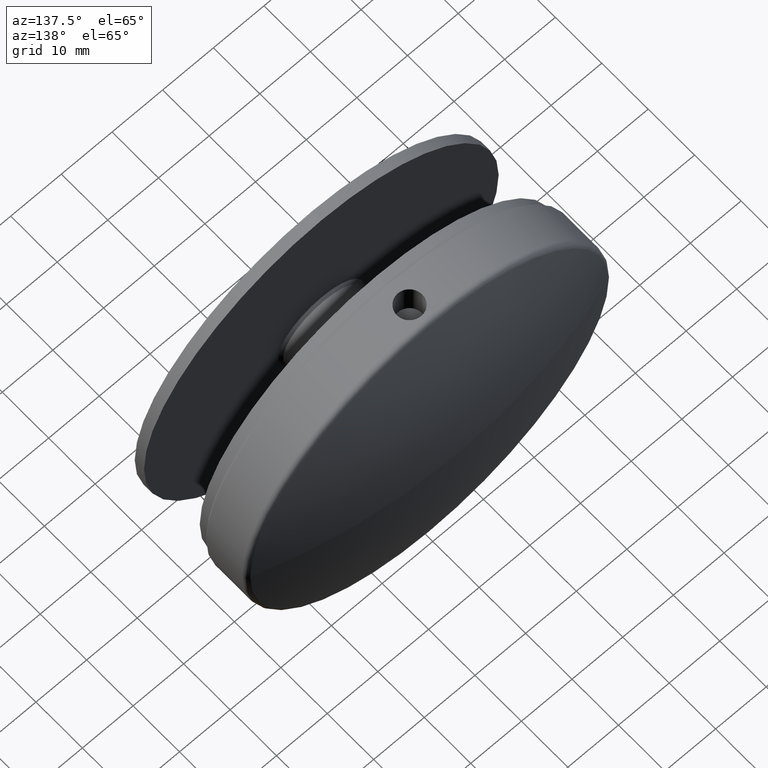
[diagram: clean part render]
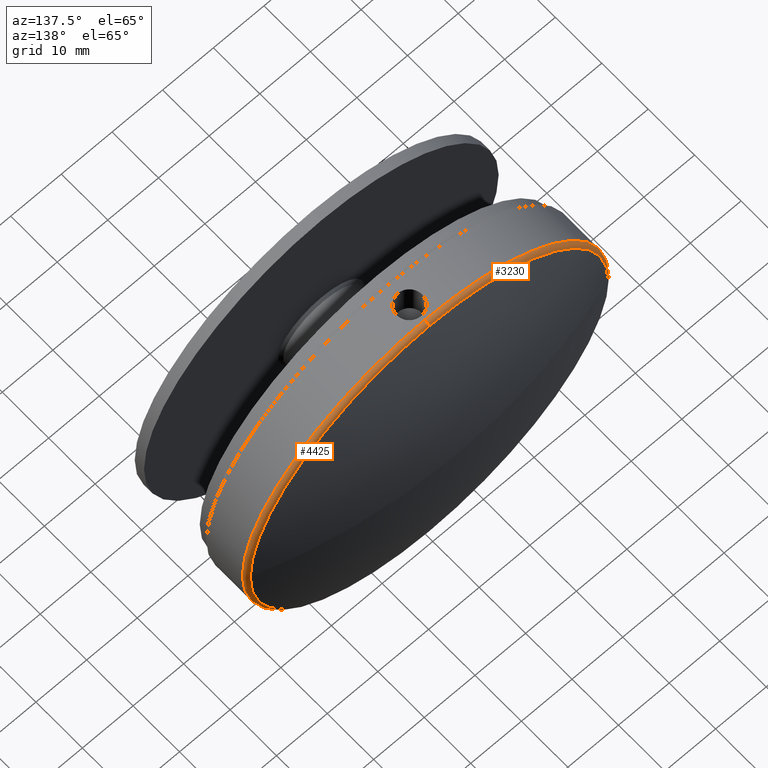
[diagram: same view with one multi-face feature highlighted, each face labeled with its STEP entity id]
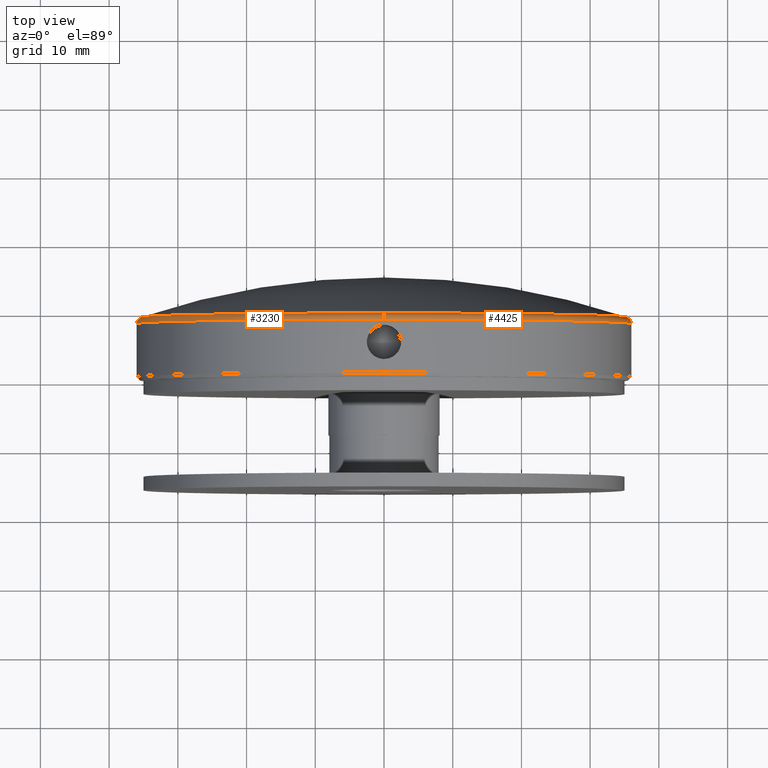
[diagram: same view with one multi-face feature highlighted, each face labeled with its STEP entity id]
A machine part, auxiliary view. The highlighted faces form ONE feature: a constant-radius fillet chain: 2 tangent blend faces with common blend radius 1 mm. The faces share edges in the B-rep.
A second angle (top view) of the same feature is appended — it is thin or edge-on in the first view.
Their STEP definitions:
[1] entity #4425 (Torus):
#69 = AXIS2_PLACEMENT_3D ( 'NONE', #2242, #10259, #13577 ) ;
#447 = ORIENTED_EDGE ( 'NONE', *, *, #8253, .T. ) ;
#453 = EDGE_LOOP ( 'NONE', ( #447, #2091, #7853, #11038, #4113 ) ) ;
#640 = DIRECTION ( 'NONE',  ( -0.000000000000000000, -1.000000000000000000, -0.000000000000000000 ) ) ;
#731 = CARTESIAN_POINT ( 'NONE',  ( 0.000000000000000000, 9.231297782826233700, -35.31818181818182723 ) ) ;
#783 = CARTESIAN_POINT ( 'NONE',  ( 0.000000000000000000, 9.231297782826233700, 0.000000000000000000 ) ) ;
#861 = CARTESIAN_POINT ( 'NONE',  ( 4.408728476930471644E-15, 8.283268073071045734, 36.00000000000000711 ) ) ;
#864 = FACE_OUTER_BOUND ( 'NONE', #453, .T. ) ;
#987 = VERTEX_POINT ( 'NONE', #861 ) ;
#1612 = AXIS2_PLACEMENT_3D ( 'NONE', #783, #640, #14592 ) ;
#1899 = CARTESIAN_POINT ( 'NONE',  ( 35.31818181818183433, 9.231297782826226594, 0.000000000000000000 ) ) ;
#2091 = ORIENTED_EDGE ( 'NONE', *, *, #5867, .T. ) ;
#2242 = CARTESIAN_POINT ( 'NONE',  ( 0.000000000000000000, 8.283268073071045734, 0.000000000000000000 ) ) ;
#2256 = VERTEX_POINT ( 'NONE', #7570 ) ;
#2802 = DIRECTION ( 'NONE',  ( 1.000000000000000000, 0.000000000000000000, -1.224646799147353207E-16 ) ) ;
#2956 = CIRCLE ( 'NONE', #10081, 1.000000000000000888 ) ;
#3198 = EDGE_CURVE ( 'NONE', #14256, #3861, #7359, .T. ) ;
#3861 = VERTEX_POINT ( 'NONE', #1899 ) ;
#4113 = ORIENTED_EDGE ( 'NONE', *, *, #3198, .T. ) ;
#4118 = DIRECTION ( 'NONE',  ( 0.000000000000000000, 0.000000000000000000, -1.000000000000000000 ) ) ;
#4263 = CIRCLE ( 'NONE', #6238, 1.000000000000000888 ) ;
#4425 = ADVANCED_FACE ( 'NONE', ( #864 ), #12352, .T. ) ;
#4875 = DIRECTION ( 'NONE',  ( 0.000000000000000000, 0.000000000000000000, -1.000000000000000000 ) ) ;
#5660 = AXIS2_PLACEMENT_3D ( 'NONE', #14362, #12097, #4118 ) ;
#5867 = EDGE_CURVE ( 'NONE', #6087, #987, #4263, .T. ) ;
#6087 = VERTEX_POINT ( 'NONE', #13797 ) ;
#6238 = AXIS2_PLACEMENT_3D ( 'NONE', #9766, #2802, #10835 ) ;
#6588 = DIRECTION ( 'NONE',  ( 0.000000000000000000, 0.000000000000000000, 1.000000000000000000 ) ) ;
#7359 = CIRCLE ( 'NONE', #5660, 35.31818181818182723 ) ;
#7570 = CARTESIAN_POINT ( 'NONE',  ( 0.000000000000000000, 8.283268073071045734, -36.00000000000000711 ) ) ;
#7853 = ORIENTED_EDGE ( 'NONE', *, *, #14023, .F. ) ;
#8253 = EDGE_CURVE ( 'NONE', #3861, #6087, #11966, .T. ) ;
#8980 = DIRECTION ( 'NONE',  ( -1.000000000000000000, 0.000000000000000000, 0.000000000000000000 ) ) ;
#9568 = EDGE_CURVE ( 'NONE', #14256, #2256, #2956, .T. ) ;
#9766 = CARTESIAN_POINT ( 'NONE',  ( 4.286263797015736496E-15, 8.283268073071045734, 35.00000000000000000 ) ) ;
#10081 = AXIS2_PLACEMENT_3D ( 'NONE', #14662, #8980, #6588 ) ;
#10259 = DIRECTION ( 'NONE',  ( -0.000000000000000000, -1.000000000000000000, -0.000000000000000000 ) ) ;
#10682 = DIRECTION ( 'NONE',  ( -0.000000000000000000, -1.000000000000000000, -0.000000000000000000 ) ) ;
#10835 = DIRECTION ( 'NONE',  ( -1.224646799147357151E-16, 0.000000000000000000, -1.000000000000000000 ) ) ;
#11038 = ORIENTED_EDGE ( 'NONE', *, *, #9568, .F. ) ;
#11966 = CIRCLE ( 'NONE', #1612, 35.31818181818182723 ) ;
#12097 = DIRECTION ( 'NONE',  ( -0.000000000000000000, -1.000000000000000000, -0.000000000000000000 ) ) ;
#12352 = TOROIDAL_SURFACE ( 'NONE', #69, 35.00000000000000000, 1.000000000000003553 ) ;
#12502 = AXIS2_PLACEMENT_3D ( 'NONE', #14095, #10682, #4875 ) ;
#13577 = DIRECTION ( 'NONE',  ( 0.000000000000000000, 0.000000000000000000, -1.000000000000000000 ) ) ;
#13797 = CARTESIAN_POINT ( 'NONE',  ( 4.366979154232267126E-15, 9.231297782826233700, 35.31818181818182723 ) ) ;
#14023 = EDGE_CURVE ( 'NONE', #2256, #987, #14386, .T. ) ;
#14095 = CARTESIAN_POINT ( 'NONE',  ( 0.000000000000000000, 8.283268073071045734, 0.000000000000000000 ) ) ;
#14256 = VERTEX_POINT ( 'NONE', #731 ) ;
#14362 = CARTESIAN_POINT ( 'NONE',  ( 0.000000000000000000, 9.231297782826233700, 0.000000000000000000 ) ) ;
#14386 = CIRCLE ( 'NONE', #12502, 36.00000000000000711 ) ;
#14592 = DIRECTION ( 'NONE',  ( 0.000000000000000000, 0.000000000000000000, -1.000000000000000000 ) ) ;
#14662 = CARTESIAN_POINT ( 'NONE',  ( 0.000000000000000000, 8.283268073071045734, -35.00000000000000000 ) ) ;
[2] entity #3230 (Torus):
#101 = AXIS2_PLACEMENT_3D ( 'NONE', #13524, #14801, #10218 ) ;
#731 = CARTESIAN_POINT ( 'NONE',  ( 0.000000000000000000, 9.231297782826233700, -35.31818181818182723 ) ) ;
#861 = CARTESIAN_POINT ( 'NONE',  ( 4.408728476930471644E-15, 8.283268073071045734, 36.00000000000000711 ) ) ;
#987 = VERTEX_POINT ( 'NONE', #861 ) ;
#1710 = EDGE_LOOP ( 'NONE', ( #5713, #8324, #8772, #2048, #14792 ) ) ;
#1852 = DIRECTION ( 'NONE',  ( 0.000000000000000000, 0.000000000000000000, -1.000000000000000000 ) ) ;
#2048 = ORIENTED_EDGE ( 'NONE', *, *, #9568, .T. ) ;
#2256 = VERTEX_POINT ( 'NONE', #7570 ) ;
#2802 = DIRECTION ( 'NONE',  ( 1.000000000000000000, 0.000000000000000000, -1.224646799147353207E-16 ) ) ;
#2956 = CIRCLE ( 'NONE', #10081, 1.000000000000000888 ) ;
#3008 = DIRECTION ( 'NONE',  ( 0.000000000000000000, 0.000000000000000000, -1.000000000000000000 ) ) ;
#3203 = EDGE_CURVE ( 'NONE', #3824, #14256, #7185, .T. ) ;
#3230 = ADVANCED_FACE ( 'NONE', ( #13813 ), #4292, .T. ) ;
#3824 = VERTEX_POINT ( 'NONE', #14393 ) ;
#4263 = CIRCLE ( 'NONE', #6238, 1.000000000000000888 ) ;
#4292 = TOROIDAL_SURFACE ( 'NONE', #11002, 35.00000000000000000, 1.000000000000003553 ) ;
#4550 = EDGE_CURVE ( 'NONE', #987, #2256, #13238, .T. ) ;
#5247 = CARTESIAN_POINT ( 'NONE',  ( 0.000000000000000000, 9.231297782826233700, 0.000000000000000000 ) ) ;
#5300 = DIRECTION ( 'NONE',  ( -0.000000000000000000, -1.000000000000000000, -0.000000000000000000 ) ) ;
#5713 = ORIENTED_EDGE ( 'NONE', *, *, #5867, .F. ) ;
#5867 = EDGE_CURVE ( 'NONE', #6087, #987, #4263, .T. ) ;
#6087 = VERTEX_POINT ( 'NONE', #13797 ) ;
#6238 = AXIS2_PLACEMENT_3D ( 'NONE', #9766, #2802, #10835 ) ;
#6588 = DIRECTION ( 'NONE',  ( 0.000000000000000000, 0.000000000000000000, 1.000000000000000000 ) ) ;
#7015 = DIRECTION ( 'NONE',  ( -0.000000000000000000, -1.000000000000000000, -0.000000000000000000 ) ) ;
#7185 = CIRCLE ( 'NONE', #12253, 35.31818181818182723 ) ;
#7546 = DIRECTION ( 'NONE',  ( -0.000000000000000000, -1.000000000000000000, -0.000000000000000000 ) ) ;
#7570 = CARTESIAN_POINT ( 'NONE',  ( 0.000000000000000000, 8.283268073071045734, -36.00000000000000711 ) ) ;
#7654 = CIRCLE ( 'NONE', #101, 35.31818181818182723 ) ;
#8166 = DIRECTION ( 'NONE',  ( 0.000000000000000000, 0.000000000000000000, -1.000000000000000000 ) ) ;
#8324 = ORIENTED_EDGE ( 'NONE', *, *, #8423, .T. ) ;
#8423 = EDGE_CURVE ( 'NONE', #6087, #3824, #7654, .T. ) ;
#8772 = ORIENTED_EDGE ( 'NONE', *, *, #3203, .T. ) ;
#8980 = DIRECTION ( 'NONE',  ( -1.000000000000000000, 0.000000000000000000, 0.000000000000000000 ) ) ;
#9568 = EDGE_CURVE ( 'NONE', #14256, #2256, #2956, .T. ) ;
#9766 = CARTESIAN_POINT ( 'NONE',  ( 4.286263797015736496E-15, 8.283268073071045734, 35.00000000000000000 ) ) ;
#10081 = AXIS2_PLACEMENT_3D ( 'NONE', #14662, #8980, #6588 ) ;
#10218 = DIRECTION ( 'NONE',  ( 0.000000000000000000, 0.000000000000000000, -1.000000000000000000 ) ) ;
#10835 = DIRECTION ( 'NONE',  ( -1.224646799147357151E-16, 0.000000000000000000, -1.000000000000000000 ) ) ;
#11002 = AXIS2_PLACEMENT_3D ( 'NONE', #11040, #5300, #3008 ) ;
#11040 = CARTESIAN_POINT ( 'NONE',  ( 0.000000000000000000, 8.283268073071045734, 0.000000000000000000 ) ) ;
#11887 = AXIS2_PLACEMENT_3D ( 'NONE', #13870, #7015, #8166 ) ;
#12253 = AXIS2_PLACEMENT_3D ( 'NONE', #5247, #7546, #1852 ) ;
#13238 = CIRCLE ( 'NONE', #11887, 36.00000000000000711 ) ;
#13524 = CARTESIAN_POINT ( 'NONE',  ( 0.000000000000000000, 9.231297782826233700, 0.000000000000000000 ) ) ;
#13797 = CARTESIAN_POINT ( 'NONE',  ( 4.366979154232267126E-15, 9.231297782826233700, 35.31818181818182723 ) ) ;
#13813 = FACE_OUTER_BOUND ( 'NONE', #1710, .T. ) ;
#13870 = CARTESIAN_POINT ( 'NONE',  ( 0.000000000000000000, 8.283268073071045734, 0.000000000000000000 ) ) ;
#14256 = VERTEX_POINT ( 'NONE', #731 ) ;
#14393 = CARTESIAN_POINT ( 'NONE',  ( -35.31818181818183433, 9.231297782826226594, 4.325229831534063396E-15 ) ) ;
#14662 = CARTESIAN_POINT ( 'NONE',  ( 0.000000000000000000, 8.283268073071045734, -35.00000000000000000 ) ) ;
#14792 = ORIENTED_EDGE ( 'NONE', *, *, #4550, .F. ) ;
#14801 = DIRECTION ( 'NONE',  ( -0.000000000000000000, -1.000000000000000000, -0.000000000000000000 ) ) ;